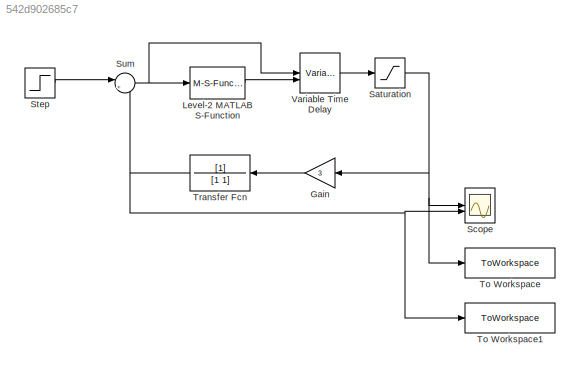
MODEL slx_542d902685c7
KIND model
CONFIG AbsTol = auto
CONFIG EnableMultiTasking = off
CONFIG FixedStep = auto
CONFIG MaxStep = 0.01
CONFIG MinStep = auto
CONFIG RelTol = 1e-6
CONFIG SampleTimeConstraint = Unconstrained
CONFIG SolverName = VariableStepAuto
CONFIG StartTime = 0.0
CONFIG StopTime = 100.0
BLOCK [Gain] Gain
  Gain = 3
  NameLocation = top
BLOCK [M-S-Function] Level-2 MATLAB S-Function
  FunctionName = running_max
  Parameters = 0
BLOCK [Saturate] Saturation
  LowerLimit = -1
  UpperLimit = 1
BLOCK [Scope] Scope
  Floating = off
  NumInputPorts = 2
  ScopeSpecificationString = Simulink.scopes.TimeScopeBlockCfg('CurrentConfiguration', extmgr.ConfigurationSet(extmgr.Configuration('Core','General UI',true),extmgr.Configuration('Core','Source UI',true),extmgr.Configuration('Sources','WiredSimulink',true),extmgr.Configuration('Visuals','Time Domain',true,'SerializedDisplays',{struct('MinYLimReal','-18.74999','MaxYLimReal','18.74999','YLabelReal','','MinYLimMag','0.00000','Ma...<+1785ch>
BLOCK [Step] Step
  After = 0
  Before = 1
  SampleTime = 0
BLOCK [Sum] Sum
  Inputs = |+-
BLOCK [ToWorkspace] To Workspace
  FixptAsFi = on
  MaxDataPoints = inf
  SampleTime = -1
  VariableName = sat_out
BLOCK [ToWorkspace] To Workspace1
  FixptAsFi = on
  MaxDataPoints = inf
  SampleTime = -1
  VariableName = lag_out
BLOCK [TransferFcn] Transfer Fcn
  Denominator = [1 1]
  NameLocation = top
BLOCK [VariableTransportDelay] Variable Time Delay
  MaximumDelay = 20
  ZeroDelay = on
LINE Gain:1 -> Transfer Fcn:1
LINE Level-2 MATLAB S-Function:1 -> Variable Time Delay:2
NET Saturation:1 -> Gain:1, Scope:1, To Workspace:1
LINE Step:1 -> Sum:1
NET Sum:1 -> Level-2 MATLAB S-Function:1, Variable Time Delay:1
NET Transfer Fcn:1 -> Scope:2, Sum:2, To Workspace1:1
LINE Variable Time Delay:1 -> Saturation:1
note: NET lines group one-source signal fan-out (src -> all destinations, sorted); 1:1 wires keep LINE
